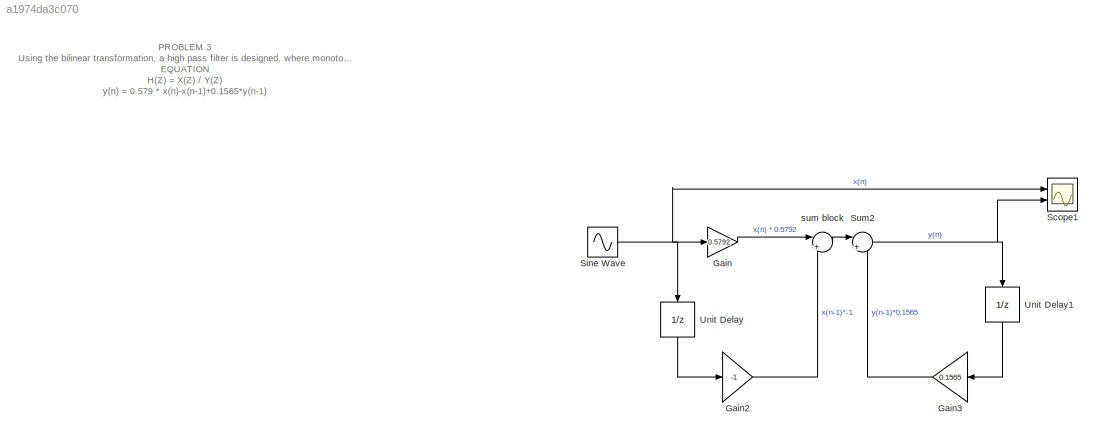
MODEL slx_a1974da3c070
KIND model
CONFIG AbsTol = auto
CONFIG EnableMultiTasking = off
CONFIG FixedStep = auto
CONFIG MaxStep = auto
CONFIG MinStep = auto
CONFIG RelTol = 1e-3
CONFIG SampleTimeConstraint = Unconstrained
CONFIG SolverName = VariableStepAuto
CONFIG StartTime = 0.0
CONFIG StopTime = 10.0
BLOCK [Gain]   Gain2
  Gain = -1
BLOCK [Gain]  Gain
  Gain = 0.5792
BLOCK [Gain]  Gain3
  Gain = 0.1565
BLOCK [Sin]  Sine Wave
  Frequency = 7000*6.28
  Ports = [0, 1]
  SampleTime = 0
BLOCK [UnitDelay]  Unit Delay
  HasFrameUpgradeWarning = on
  NameLocation = left
  SampleTime = -1
BLOCK [UnitDelay]  Unit Delay1
  HasFrameUpgradeWarning = on
  NameLocation = left
  SampleTime = -1
BLOCK [Scope] Scope1
  Floating = off
  NumInputPorts = 2
  Ports = [2]
  ScopeSpecificationString = Simulink.scopes.TimeScopeBlockCfg('CurrentConfiguration', extmgr.ConfigurationSet(extmgr.Configuration('Core','General UI',true),extmgr.Configuration('Core','Source UI',true),extmgr.Configuration('Sources','WiredSimulink',true,'DataLoggingVariableName','ScopeData1'),extmgr.Configuration('Visuals','Time Domain',true,'SerializedDisplays',{struct('MinYLimReal','-1.23797','MaxYLimReal','1.14175','YLab...<+2018ch>
BLOCK [Sum] Sum2
  Inputs = |++
  Ports = [2, 1]
BLOCK [Sum] sum block
  Inputs = |++
  NameLocation = top
  Ports = [2, 1]
ANNOTATION (root): PROBLEM 3 Using the bilinear transformation, a high pass filter is designed, where monotonic in passband with cutoff frequency of 1000 Hz and down 10 dB at 350 Hz. The sampling frequency is 5000 Hz. The filter’s output is demonstrated for 5 different frequencies ranging from 100 Hz to 10000 Hz. EQUATION H(Z) = X(Z) / Y(Z) y(n) = 0.579 * x(n)-x(n-1)+0.1565*y(n-1)
LINE   Gain2:1 -> sum block:2
LINE  Gain3:1 -> Sum2:2
LINE  Gain:1 -> sum block:1
NET  Sine Wave:1 ->  Gain:1,  Unit Delay:1, Scope1:1
LINE  Unit Delay1:1 ->  Gain3:1
LINE  Unit Delay:1 ->   Gain2:1
NET Sum2:1 ->  Unit Delay1:1, Scope1:2
LINE sum block:1 -> Sum2:1
note: NET lines group one-source signal fan-out (src -> all destinations, sorted); 1:1 wires keep LINE
